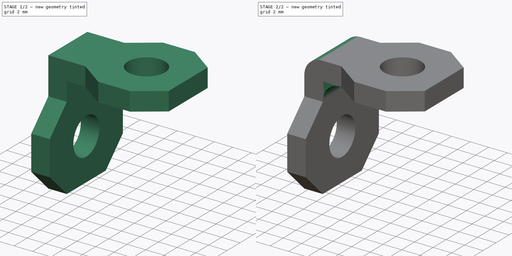
[diagram: build sequence overview — one tinted view per stage of 2, left to right]
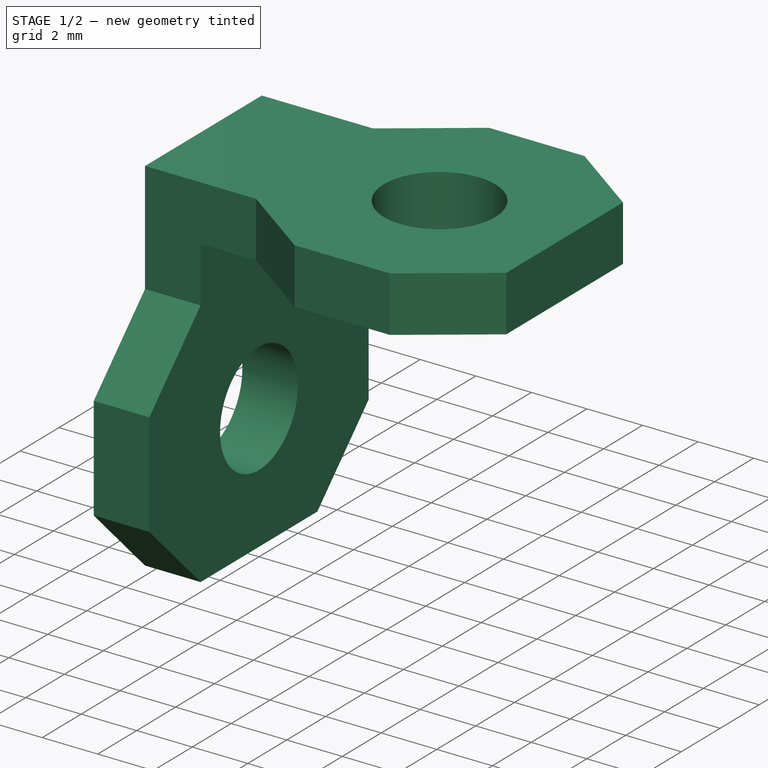
[diagram: stage 1 of 2 — iso view after this stage's code; geometry added in this stage tinted green]
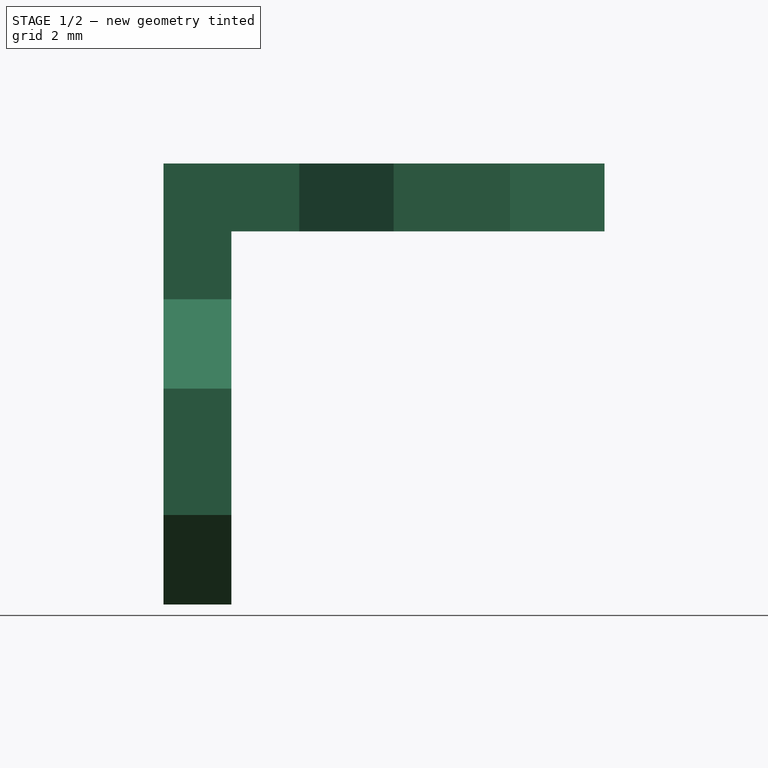
[diagram: stage 1 of 2 — front view after this stage's code; geometry added in this stage tinted green]
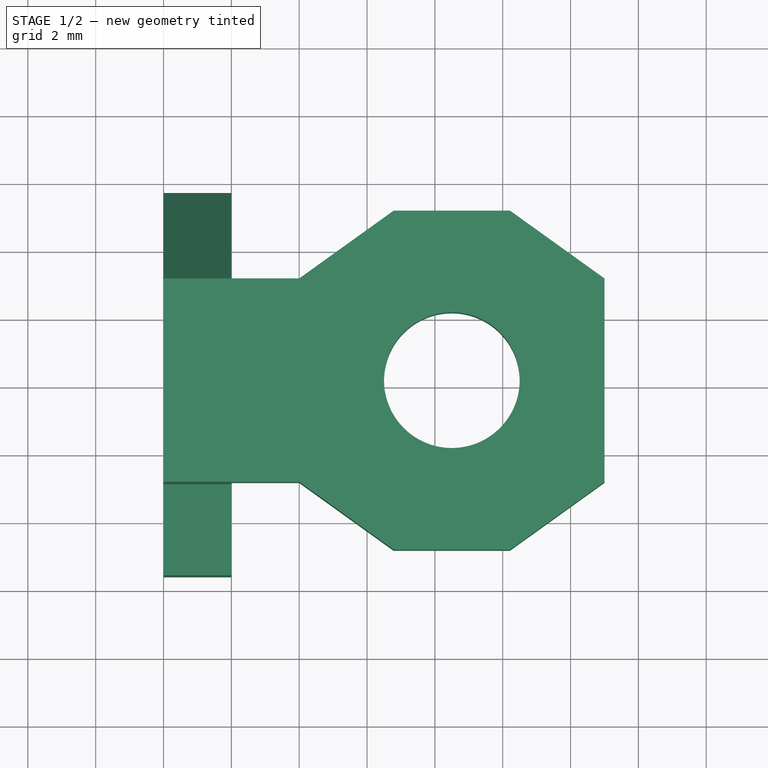
[diagram: stage 1 of 2 — top view after this stage's code; geometry added in this stage tinted green]
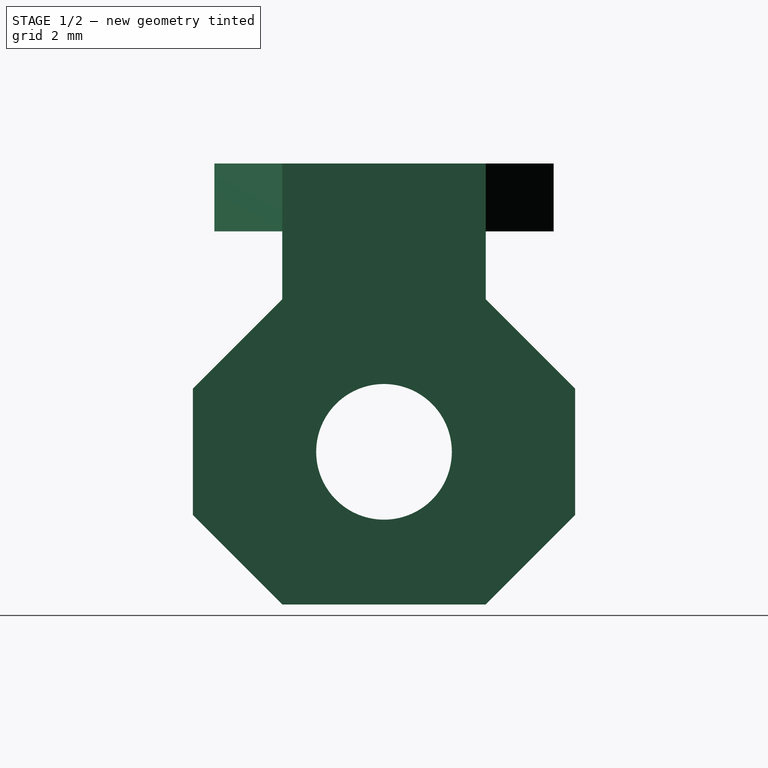
[diagram: stage 1 of 2 — right view after this stage's code; geometry added in this stage tinted green]
FCSTD DOCUMENT  (FreeCAD 0.16RUnknown)
Label: Inner_bracket_20_steel_B-Type_slot6
License: CreativeCommons Attribution-ShareAlike
LicenseURL: http://creativecommons.org/licenses/by-sa/4.0/
objects: Sketcher::SketchObject×2, PartDesign::Pad×2, PartDesign::Fillet×1
note: 7 computed .brp shape members not serialized (recipe doc carries the construction recipe); baked Part::Feature solids carry a one-line shape summary decoded from their .brp

FEATURE [Sketcher::SketchObject] Sketch
  sketch-geometry (12):
    g0: Circle CenterX=8.5 CenterY=0 CenterZ=0 NormalX=0 NormalY=0 NormalZ=1 Radius=2
    g1: LineSegment StartX=13 StartY=3 StartZ=0 EndX=13 EndY=-3 EndZ=0
    g2: LineSegment StartX=4 StartY=-3 StartZ=0 EndX=0 EndY=-3 EndZ=0
    g3: LineSegment StartX=0 StartY=-3 StartZ=0 EndX=0 EndY=3 EndZ=0
    g4: LineSegment StartX=0 StartY=3 StartZ=0 EndX=4 EndY=3 EndZ=0
    g5: LineSegment StartX=4 StartY=3 StartZ=0 EndX=6.78545 EndY=5 EndZ=0
    g6: LineSegment StartX=6.78545 StartY=5 StartZ=0 EndX=10.2146 EndY=5 EndZ=0
    g7: LineSegment StartX=10.2146 StartY=5 StartZ=0 EndX=13 EndY=3 EndZ=0
    g8: LineSegment StartX=4 StartY=-3 StartZ=0 EndX=6.78545 EndY=-5 EndZ=0
    g9: LineSegment StartX=6.78545 StartY=-5 StartZ=0 EndX=10.2146 EndY=-5 EndZ=0
    g10: LineSegment StartX=10.2146 StartY=-5 StartZ=0 EndX=13 EndY=-3 EndZ=0
    g11: LineSegment [constr] StartX=8.5 StartY=5 StartZ=0 EndX=8.5 EndY=-5 EndZ=0
  constraints (37):
    c: PointOnObject(g0,g-1)
    c: Vertical(g1)
    c: Horizontal(g2)
    c: Coincident(g2,g3)
    c: Coincident(g3,g4)
    c: Horizontal(g4)
    c: Equal(g2,g4)
    c: Equal(g3,g1)
    c: Symmetric(g1,g1,g-1)
    c: DistanceY(g1,g1) = 6
    c: DistanceX(g3,g1) = 13
    c: DistanceX(g0,g1) = 4.5
    c: Vertical(g3)
    c: PointOnObject(g-1,g3)
    c: Coincident(g4,g5)
    c: Coincident(g5,g6)
    c: Horizontal(g6)
    c: Coincident(g6,g7)
    c: Coincident(g7,g1)
    c: Coincident(g2,g8)
    c: Coincident(g8,g9)
    c: Horizontal(g9)
    c: Coincident(g9,g10)
    c: Coincident(g10,g1)
    c: Equal(g9,g6)
    c: Equal(g8,g10)
    c: Equal(g5,g7)
    c: Vertical(g11)
    c: PointOnObject(g11,g6)
    c: PointOnObject(g11,g9)
    c: PointOnObject(g0,g11)
    c: Symmetric(g5,g6,g11)
    c: DistanceY(g11,g11) = 10
    c: Equal(g8,g5)
    c: Symmetric(g2,g3,g-1)
    c: Equal(g9,g8)
    c: Radius(g0) = 2
FEATURE [PartDesign::Pad] Pad
  Length = 2
  Length2 = 100
  Sketch = -> Sketch
  Type = 0
FEATURE [Sketcher::SketchObject] Sketch001
  Placement = pos=(0,0,0) rot=(0.57735,-0.57735,-0.57735;2.0944rad)
  Support = -> Pad [Face2]
  sketch-geometry (12):
    g0: LineSegment StartX=-3 StartY=0 StartZ=0 EndX=3 EndY=0 EndZ=0
    g1: LineSegment StartX=3 StartY=0 StartZ=0 EndX=3 EndY=-2 EndZ=0
    g2: LineSegment StartX=3 StartY=-2 StartZ=0 EndX=5.63604 EndY=-4.63604 EndZ=0
    g3: LineSegment StartX=5.63604 StartY=-4.63604 StartZ=0 EndX=5.63604 EndY=-8.36396 EndZ=0
    g4: LineSegment StartX=5.63604 StartY=-8.36396 StartZ=0 EndX=3 EndY=-11 EndZ=0
    g5: LineSegment StartX=3 StartY=-11 StartZ=0 EndX=-3 EndY=-11 EndZ=0
    g6: LineSegment StartX=-3 StartY=-11 StartZ=0 EndX=-5.63604 EndY=-8.36396 EndZ=0
    g7: LineSegment StartX=-5.63604 StartY=-8.36396 StartZ=0 EndX=-5.63604 EndY=-4.63604 EndZ=0
    g8: LineSegment StartX=-5.63604 StartY=-4.63604 StartZ=0 EndX=-3 EndY=-2 EndZ=0
    g9: LineSegment StartX=-3 StartY=-2 StartZ=0 EndX=-3 EndY=0 EndZ=0
    g10: Circle CenterX=0 CenterY=-6.5 CenterZ=0 NormalX=0 NormalY=0 NormalZ=1 Radius=2
    g11: LineSegment [constr] StartX=-5.63604 StartY=-6.5 StartZ=0 EndX=5.63604 EndY=-6.5 EndZ=0
  constraints (35):
    c: PointOnObject(g0,g-1)
    c: Coincident(g0,g1)
    c: Vertical(g1)
    c: Coincident(g1,g2)
    c: Coincident(g2,g3)
    c: Coincident(g3,g4)
    c: Coincident(g5,g6)
    c: Coincident(g6,g7)
    c: Coincident(g7,g8)
    c: Coincident(g8,g9)
    c: Coincident(g9,g0)
    c: Vertical(g9)
    c: Vertical(g7)
    c: Vertical(g3)
    c: Equal(g4,g6)
    c: Equal(g8,g2)
    c: Equal(g2,g4)
    c: DistanceX(g5,g5) = 6
    c: Equal(g0,g5)
    c: Angle(g3,g4) = 2.35619
    c: Symmetric(g6,g3,g-2)
    c: Horizontal(g5)
    c: Symmetric(g0,g0,g-2)
    c: Equal(g7,g3)
    c: PointOnObject(g10,g-2)
    c: Coincident(g4,g5)
    c: DistanceY(g4,g-1) = 11
    c: DistanceY(g4,g10) = 4.5
    c: PointOnObject(g11,g7)
    c: PointOnObject(g11,g3)
    c: PointOnObject(g10,g11)
    c: Horizontal(g11)
    c: Symmetric(g7,g6,g11)
    c: Equal(g6,g7)
    c: Radius(g10) = 2
FEATURE [PartDesign::Pad] Pad001
  Length = 2
  Length2 = 100
  Reversed = true
  Sketch = -> Sketch001
  Type = 0
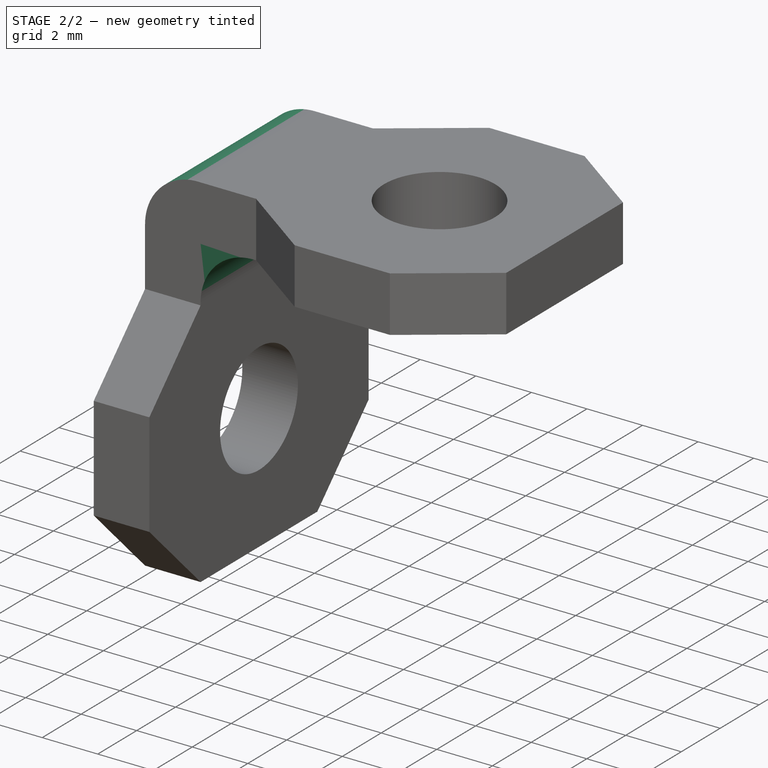
[diagram: stage 2 of 2 — iso view after this stage's code; geometry added in this stage tinted green]
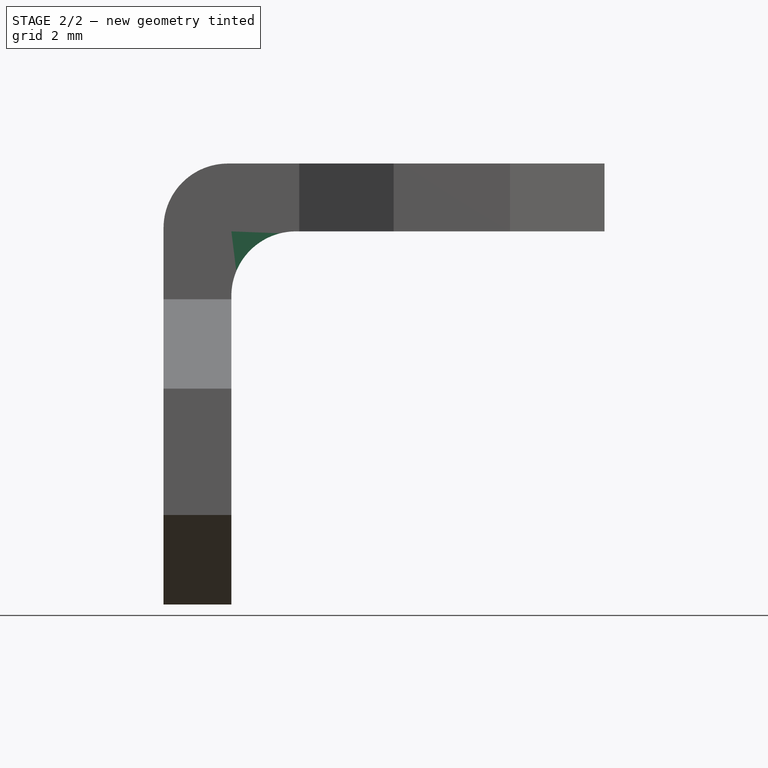
[diagram: stage 2 of 2 — front view after this stage's code; geometry added in this stage tinted green]
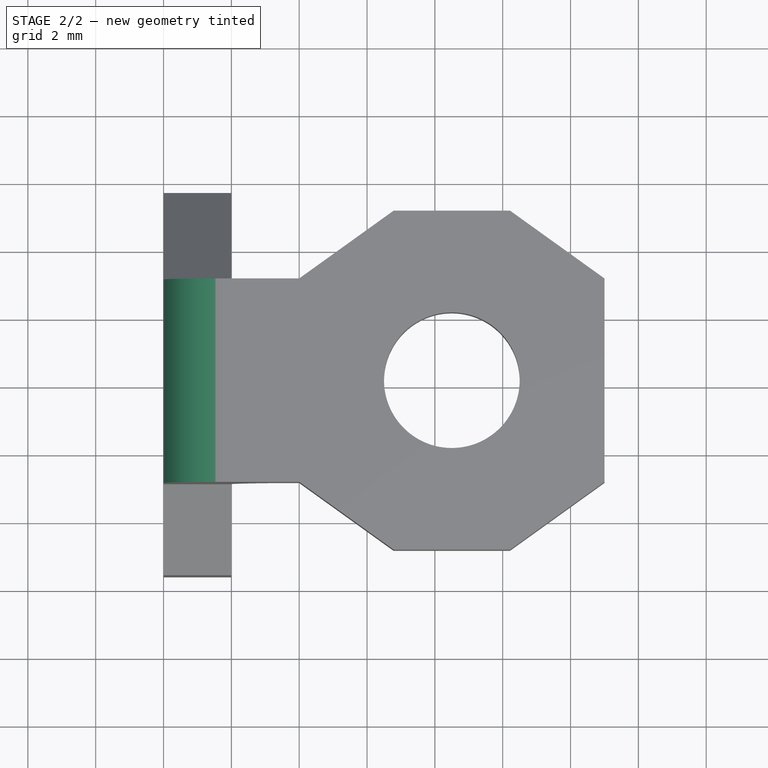
[diagram: stage 2 of 2 — top view after this stage's code; geometry added in this stage tinted green]
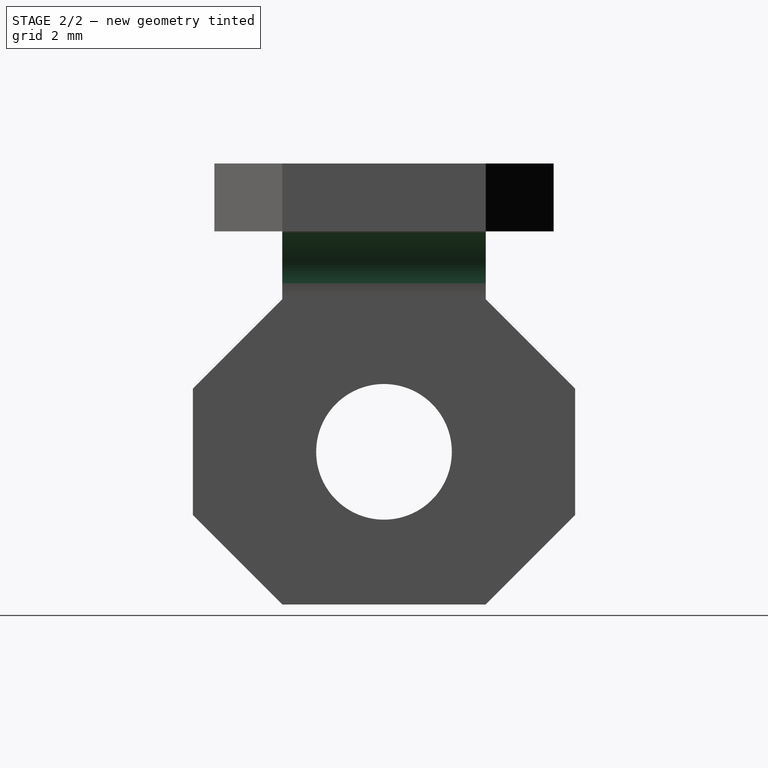
[diagram: stage 2 of 2 — right view after this stage's code; geometry added in this stage tinted green]
FEATURE [PartDesign::Fillet] Fillet
  Base = -> Pad001 [Edge18,Edge20]
  Radius = 1.9
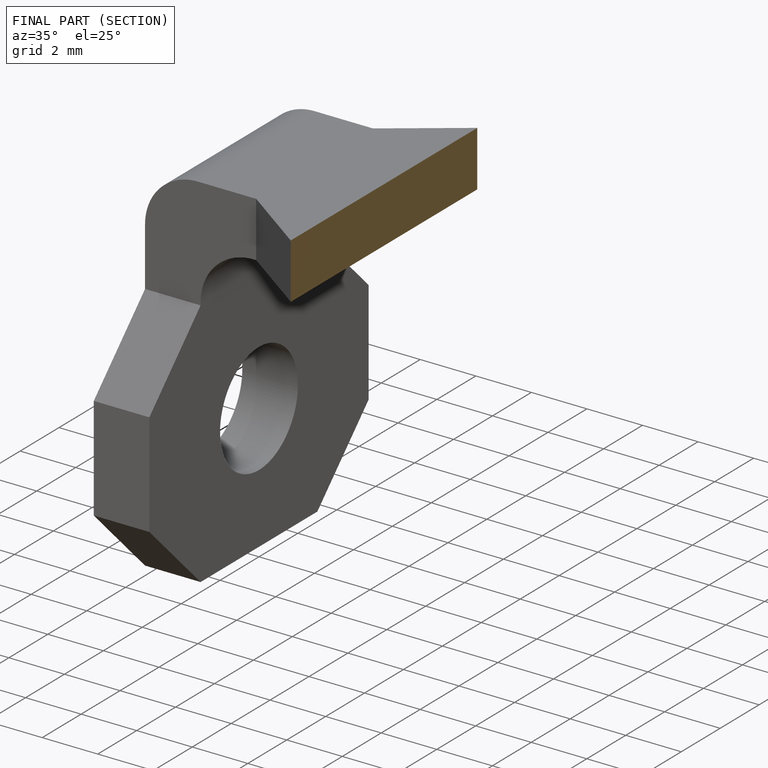
[diagram: finished part — half-section view (interior)]
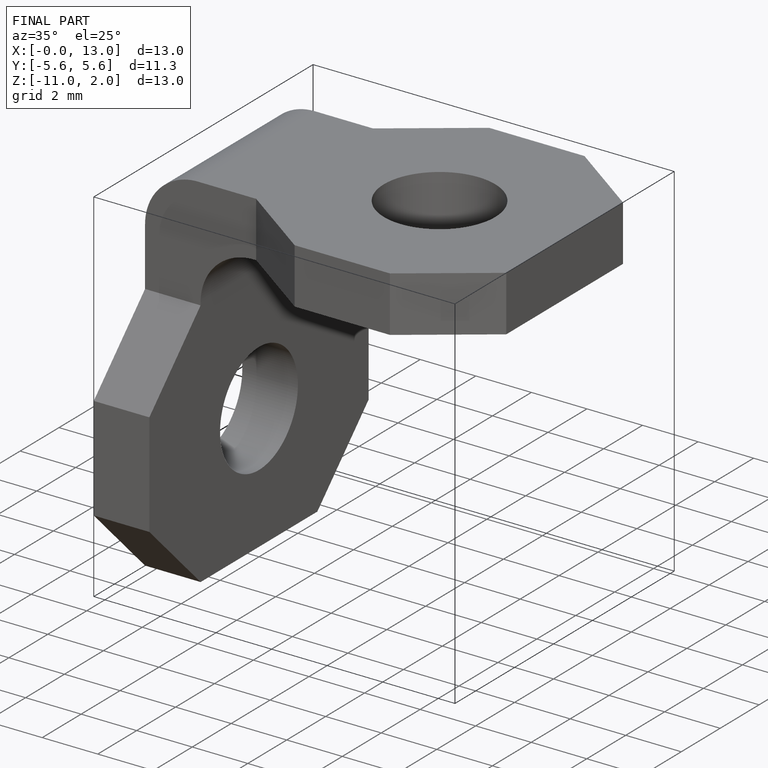
[diagram: finished part — iso view with bounding-box wireframe]
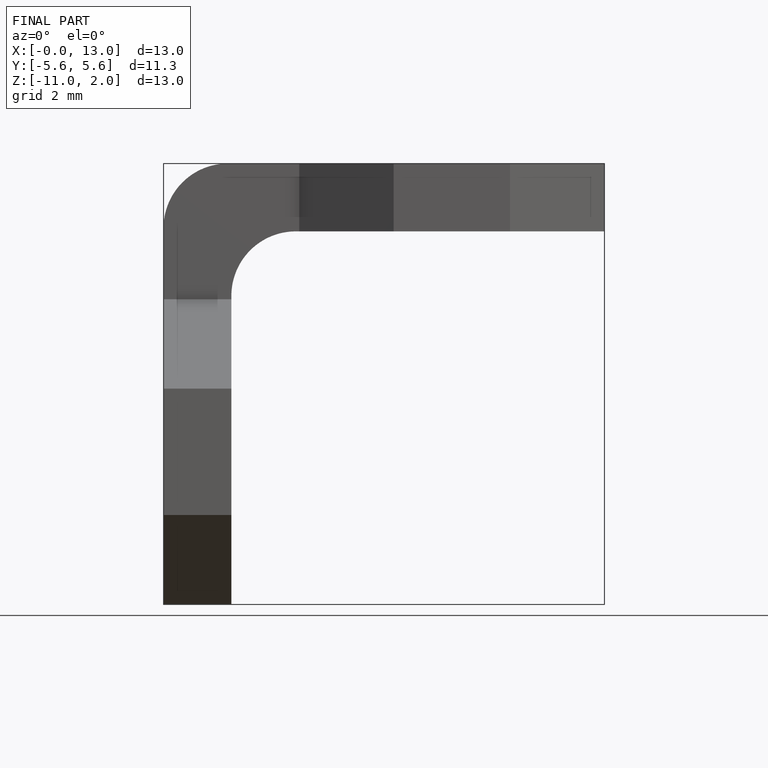
[diagram: finished part — front view with bounding-box wireframe]
